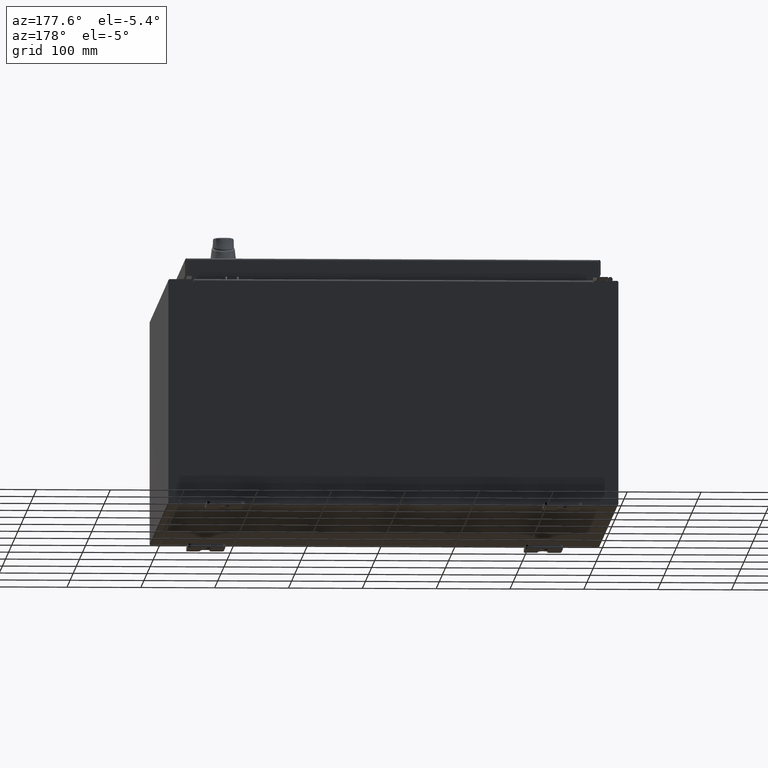
[diagram: clean part render]
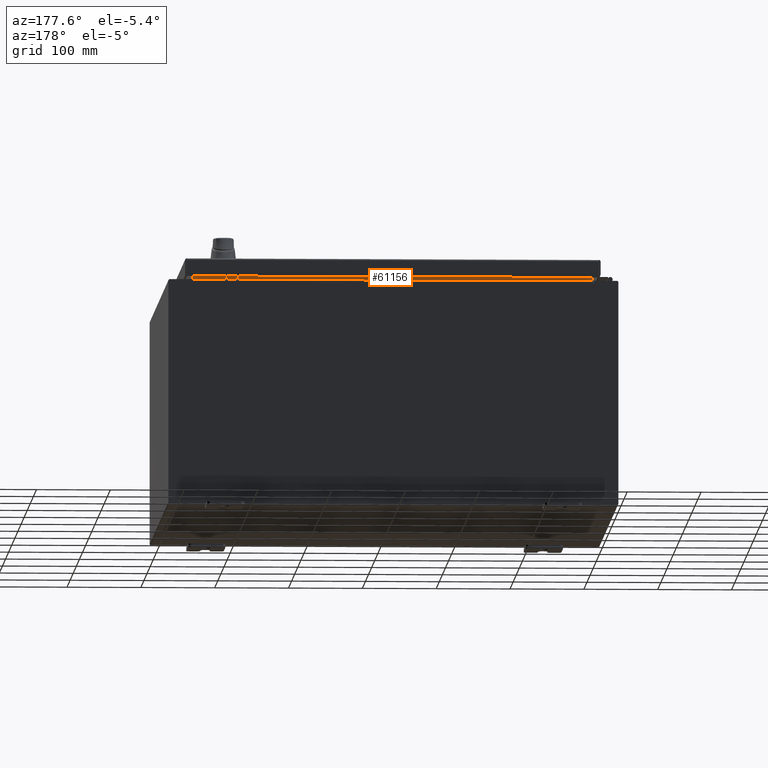
[diagram: same view with one face highlighted and labeled with its STEP entity id]
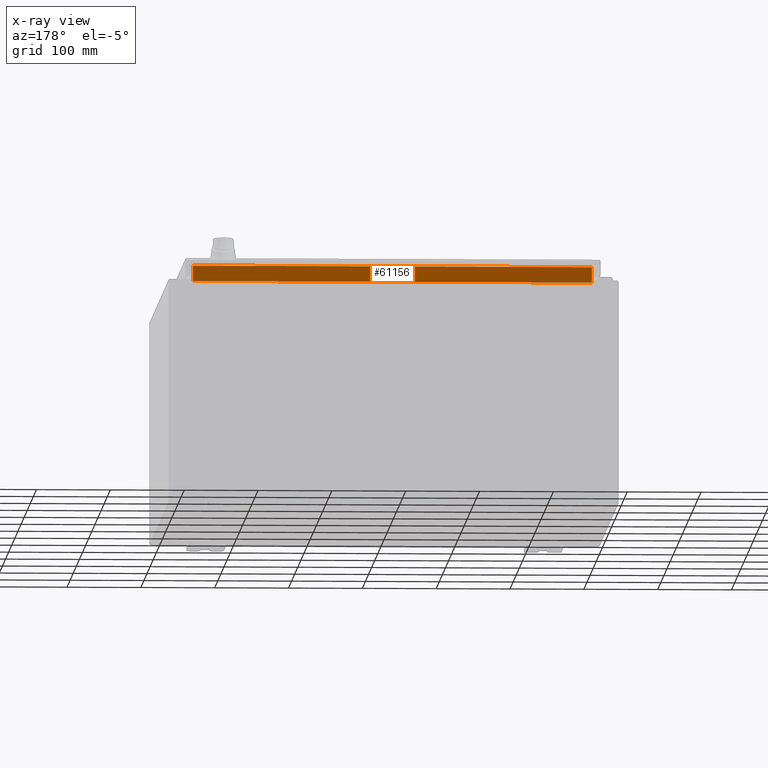
[diagram: x-ray of the same camera — body ghosted, the highlighted face saturated]
A machine part, auxiliary view. The second image highlights one B-rep face of the part: STEP entity #61156.
The next image is the same camera in x-ray: the body ghosted, the highlighted face saturated — about 0% of this face is hidden behind the body in this view.
In plain terms, the highlighted planar face has unit normal (-0, 1, 0).
Its self-contained STEP definition (entity closure, byte-faithful):
#2416 = DIRECTION ( 'NONE',  ( -9.098806308417904000E-032, 1.000000000000000000, 8.857174949738224200E-016 ) ) ;
#12627 = CARTESIAN_POINT ( 'NONE',  ( 10.63720000000000200, -1.300300000000000700, 6.925300000000007100 ) ) ;
#13702 = DIRECTION ( 'NONE',  ( -1.000000000000000000, -0.0000000000000000000, -0.0000000000000000000 ) ) ;
#14637 = ORIENTED_EDGE ( 'NONE', *, *, #35603, .F. ) ;
#15473 = VECTOR ( 'NONE', #95407, 39.37007874015748100 ) ;
#17216 = CARTESIAN_POINT ( 'NONE',  ( -10.63720000000000200, -1.300299999999999800, 6.000000000000003600 ) ) ;
#22779 = EDGE_LOOP ( 'NONE', ( #102517, #42413, #14637, #57770 ) ) ;
#23298 = VECTOR ( 'NONE', #78479, 39.37007874015748100 ) ;
#35603 = EDGE_CURVE ( 'NONE', #51686, #104111, #111633, .T. ) ;
#37206 = CARTESIAN_POINT ( 'NONE',  ( 1.183117784283575500E-031, -1.300299999999994700, -1.151698458714456500E-015 ) ) ;
#39462 = EDGE_CURVE ( 'NONE', #104111, #51805, #42187, .T. ) ;
#41499 = LINE ( 'NONE', #86954, #15473 ) ;
#42187 = LINE ( 'NONE', #74915, #73709 ) ;
#42413 = ORIENTED_EDGE ( 'NONE', *, *, #39462, .F. ) ;
#43697 = FACE_OUTER_BOUND ( 'NONE', #22779, .T. ) ;
#48409 = CARTESIAN_POINT ( 'NONE',  ( 10.63720000000000400, -1.300299999999999800, 6.013000000000005200 ) ) ;
#51686 = VERTEX_POINT ( 'NONE', #48409 ) ;
#51805 = VERTEX_POINT ( 'NONE', #52169 ) ;
#52169 = CARTESIAN_POINT ( 'NONE',  ( -10.63719999999998800, -1.300300000000000900, 6.837600000000007200 ) ) ;
#55207 = EDGE_CURVE ( 'NONE', #78148, #51686, #41499, .T. ) ;
#57770 = ORIENTED_EDGE ( 'NONE', *, *, #55207, .F. ) ;
#61156 = ADVANCED_FACE ( 'NONE', ( #43697 ), #63258, .T. ) ;
#63258 = PLANE ( 'NONE',  #80615 ) ;
#63639 = DIRECTION ( 'NONE',  ( 0.0000000000000000000, -8.857174949738224200E-016, 1.000000000000000000 ) ) ;
#65042 = DIRECTION ( 'NONE',  ( -0.0000000000000000000, -8.857174949738224200E-016, 1.000000000000000000 ) ) ;
#71694 = CARTESIAN_POINT ( 'NONE',  ( -10.63720000000000400, -1.300299999999999800, 6.013000000000005200 ) ) ;
#73709 = VECTOR ( 'NONE', #13702, 39.37007874015748100 ) ;
#74915 = CARTESIAN_POINT ( 'NONE',  ( 10.63719999999999600, -1.300300000000000900, 6.837600000000007200 ) ) ;
#78148 = VERTEX_POINT ( 'NONE', #71694 ) ;
#78479 = DIRECTION ( 'NONE',  ( -0.0000000000000000000, 8.857174949738214300E-016, -1.000000000000000000 ) ) ;
#80615 = AXIS2_PLACEMENT_3D ( 'NONE', #37206, #2416, #63639 ) ;
#85490 = VECTOR ( 'NONE', #65042, 39.37007874015748100 ) ;
#86954 = CARTESIAN_POINT ( 'NONE',  ( -10.63720000000000200, -1.300299999999999800, 6.013000000000003500 ) ) ;
#93308 = EDGE_CURVE ( 'NONE', #51805, #78148, #95948, .T. ) ;
#94199 = CARTESIAN_POINT ( 'NONE',  ( 10.63720000000000200, -1.300300000000000700, 6.837600000000007200 ) ) ;
#95407 = DIRECTION ( 'NONE',  ( 1.000000000000000000, 1.027280861002618300E-016, 1.027280861002618300E-016 ) ) ;
#95948 = LINE ( 'NONE', #17216, #23298 ) ;
#102517 = ORIENTED_EDGE ( 'NONE', *, *, #93308, .F. ) ;
#104111 = VERTEX_POINT ( 'NONE', #94199 ) ;
#111633 = LINE ( 'NONE', #12627, #85490 ) ;